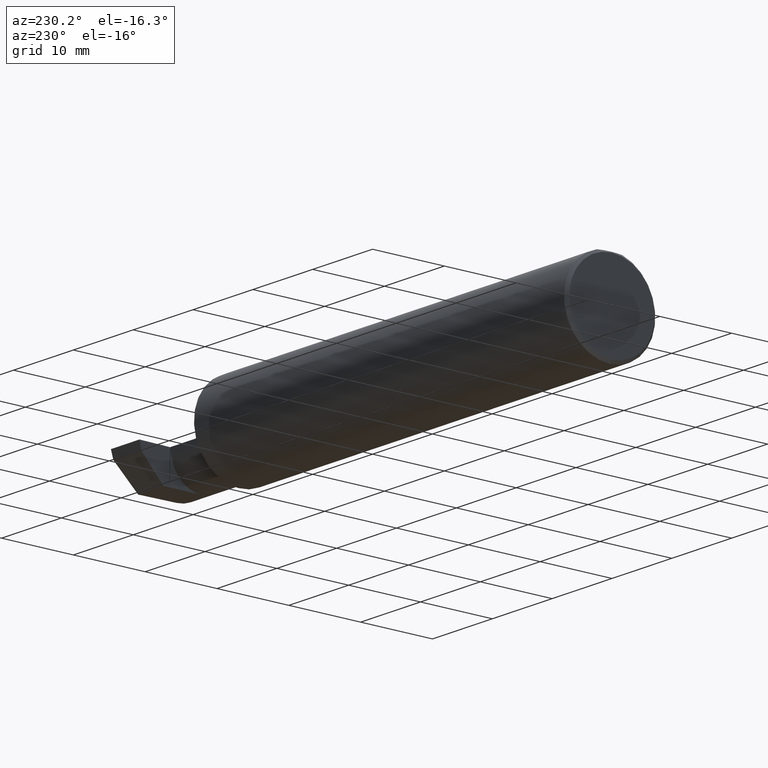
[diagram: clean part render]
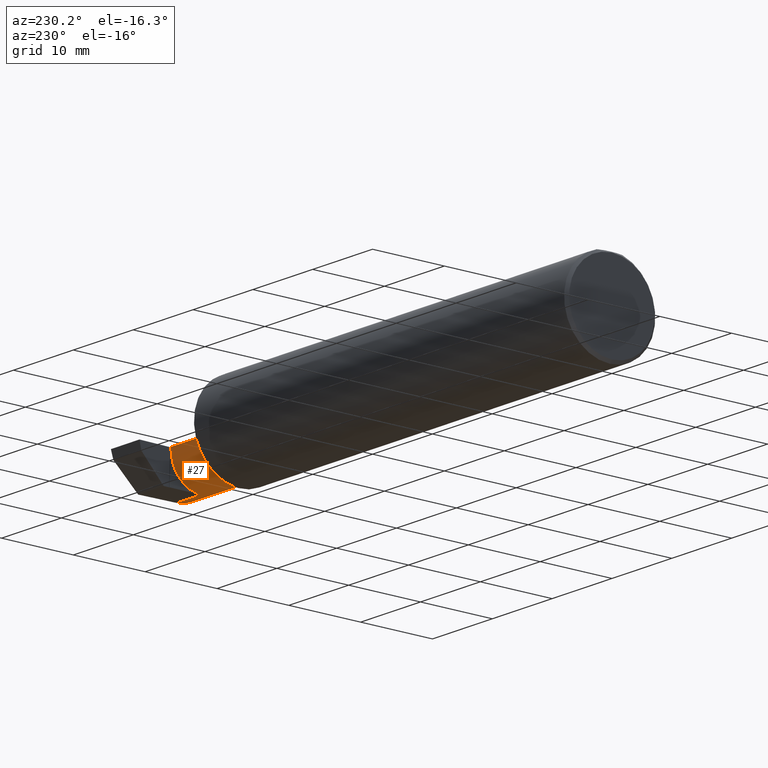
[diagram: same view with one face highlighted and labeled with its STEP entity id]
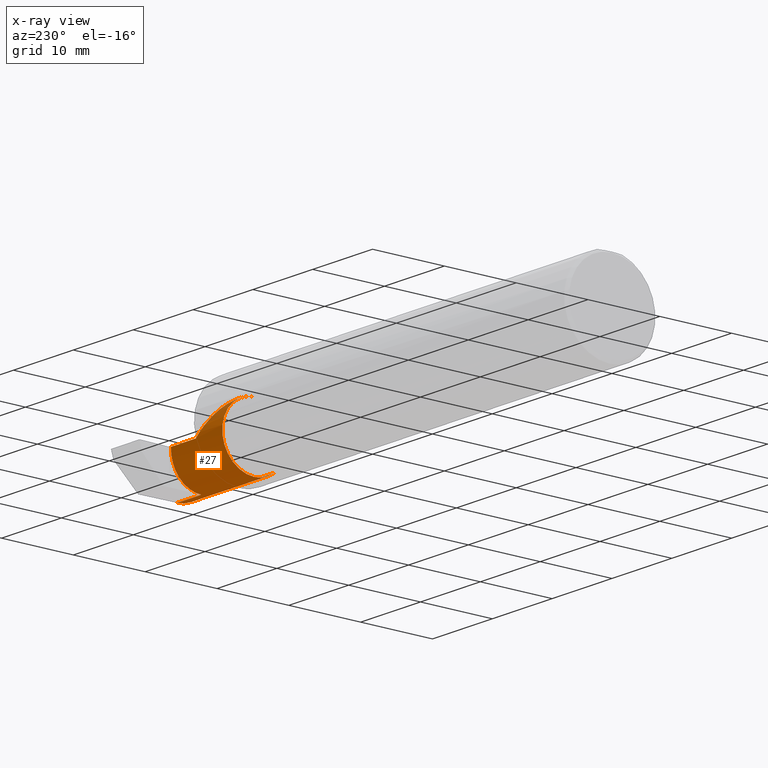
[diagram: x-ray of the same camera — body ghosted, the highlighted face saturated]
A machine part, auxiliary view. The second image highlights one B-rep face of the part: STEP entity #27.
The next image is the same camera in x-ray: the body ghosted, the highlighted face saturated — about 5% of this face is hidden behind the body in this view.
In plain terms, the highlighted cylindrical surface (partial cylindrical patch) has radius 4.445 mm, axis along (-1, -0, -0).
Its self-contained STEP definition (entity closure, byte-faithful):
#11 = EDGE_CURVE ( 'NONE', #62, #83, #819, .T. ) ;
#20 = FACE_OUTER_BOUND ( 'NONE', #667, .T. ) ;
#27 = ADVANCED_FACE ( 'NONE', ( #20 ), #511, .T. ) ;
#46 = EDGE_CURVE ( 'NONE', #113, #446, #530, .T. ) ;
#62 = VERTEX_POINT ( 'NONE', #579 ) ;
#82 = CARTESIAN_POINT ( 'NONE',  ( 2.814037492458068890, 0.06794054266098487060, -0.04620338416404773385 ) ) ;
#83 = VERTEX_POINT ( 'NONE', #518 ) ;
#91 = DIRECTION ( 'NONE',  ( 0.000000000000000000, 0.000000000000000000, 1.000000000000000000 ) ) ;
#99 = DIRECTION ( 'NONE',  ( -1.000000000000000000, -0.000000000000000000, -0.000000000000000000 ) ) ;
#103 = EDGE_CURVE ( 'NONE', #758, #438, #384, .T. ) ;
#113 = VERTEX_POINT ( 'NONE', #638 ) ;
#115 = AXIS2_PLACEMENT_3D ( 'NONE', #264, #715, #640 ) ;
#125 = EDGE_CURVE ( 'NONE', #205, #313, #450, .T. ) ;
#139 = EDGE_CURVE ( 'NONE', #83, #205, #283, .T. ) ;
#161 = EDGE_CURVE ( 'NONE', #733, #113, #604, .T. ) ;
#162 = CARTESIAN_POINT ( 'NONE',  ( 2.813372681961406219, 0.07204909126152568566, -0.03119400421533605194 ) ) ;
#167 = CARTESIAN_POINT ( 'NONE',  ( 2.814037492458068890, 0.06794054266098487060, -0.04620338416404773385 ) ) ;
#183 = AXIS2_PLACEMENT_3D ( 'NONE', #743, #749, #754 ) ;
#199 = CARTESIAN_POINT ( 'NONE',  ( 2.812000000000000277, -0.1008499999999999674, 0.000000000000000000 ) ) ;
#205 = VERTEX_POINT ( 'NONE', #783 ) ;
#230 = DIRECTION ( 'NONE',  ( -1.000000000000000000, -0.000000000000000000, -0.000000000000000000 ) ) ;
#264 = CARTESIAN_POINT ( 'NONE',  ( 2.450000000000000178, -0.1008499999999999674, 0.000000000000000000 ) ) ;
#265 = ORIENTED_EDGE ( 'NONE', *, *, #139, .T. ) ;
#283 = LINE ( 'NONE', #290, #555 ) ;
#290 = CARTESIAN_POINT ( 'NONE',  ( 2.450000000000000178, 0.07414999999999997982, 6.735557395310432655E-17 ) ) ;
#299 = ORIENTED_EDGE ( 'NONE', *, *, #412, .F. ) ;
#303 = CARTESIAN_POINT ( 'NONE',  ( 2.980479240051444378, -0.2080850024789291652, -0.1382955322609665250 ) ) ;
#304 = AXIS2_PLACEMENT_3D ( 'NONE', #466, #644, #718 ) ;
#313 = VERTEX_POINT ( 'NONE', #823 ) ;
#318 = AXIS2_PLACEMENT_3D ( 'NONE', #199, #99, #91 ) ;
#334 = EDGE_CURVE ( 'NONE', #62, #758, #789, .T. ) ;
#335 = CARTESIAN_POINT ( 'NONE',  ( 2.819564601548836702, 0.04629714416892590639, -0.1252712066320192108 ) ) ;
#368 = VERTEX_POINT ( 'NONE', #303 ) ;
#371 = VECTOR ( 'NONE', #230, 39.37007874015748143 ) ;
#384 = CIRCLE ( 'NONE', #304, 0.1749999999999999889 ) ;
#390 = CARTESIAN_POINT ( 'NONE',  ( 2.475000000000000089, -0.1008499999999999536, -0.1749999999999999889 ) ) ;
#404 = EDGE_CURVE ( 'NONE', #368, #438, #599, .T. ) ;
#412 = EDGE_CURVE ( 'NONE', #446, #313, #808, .T. ) ;
#415 = ORIENTED_EDGE ( 'NONE', *, *, #404, .T. ) ;
#420 = CARTESIAN_POINT ( 'NONE',  ( 2.983262242683407006, -0.1008499999999999674, -0.1749999999999999889 ) ) ;
#430 = ORIENTED_EDGE ( 'NONE', *, *, #334, .F. ) ;
#438 = VERTEX_POINT ( 'NONE', #735 ) ;
#446 = VERTEX_POINT ( 'NONE', #673 ) ;
#450 = CIRCLE ( 'NONE', #318, 0.1749999999999999889 ) ;
#456 = CARTESIAN_POINT ( 'NONE',  ( 2.823029432995153076, -0.1008500000000000091, -0.1749999999999999889 ) ) ;
#457 = ORIENTED_EDGE ( 'NONE', *, *, #11, .T. ) ;
#459 = CARTESIAN_POINT ( 'NONE',  ( 2.650000000000000355, 0.07414999999999997982, 4.286263797015727350E-17 ) ) ;
#465 = CARTESIAN_POINT ( 'NONE',  ( 2.983262242683407006, -0.1008499999999999674, -0.1749999999999999889 ) ) ;
#466 = CARTESIAN_POINT ( 'NONE',  ( 2.475000000000000089, -0.1008499999999999674, 0.000000000000000000 ) ) ;
#482 = CARTESIAN_POINT ( 'NONE',  ( 2.980931506555613453, -0.1771157075472509779, -0.1623092683844330475 ) ) ;
#483 = CARTESIAN_POINT ( 'NONE',  ( 2.812000000000000277, 0.07414987299205413884, -0.0002108382441793286695 ) ) ;
#511 = CYLINDRICAL_SURFACE ( 'NONE', #115, 0.1749999999999999889 ) ;
#516 = CARTESIAN_POINT ( 'NONE',  ( 2.475000000000001421, 0.001662626584708371512, 0.1749999999999999889 ) ) ;
#518 = CARTESIAN_POINT ( 'NONE',  ( 2.650000000000000355, 0.07414999999999997982, 4.286263797015727350E-17 ) ) ;
#521 = CARTESIAN_POINT ( 'NONE',  ( 2.547487373415292744, 0.07414999999999996594, 0.1025126265847083745 ) ) ;
#530 =( BOUNDED_CURVE ( )  B_SPLINE_CURVE ( 3, ( #456, #584, #335, #82 ),
 .UNSPECIFIED., .F., .F. ) 
 B_SPLINE_CURVE_WITH_KNOTS ( ( 4, 4 ),
 ( 3.140373936913444908, 4.443983221546780271 ),
 .UNSPECIFIED. ) 
 CURVE ( )  GEOMETRIC_REPRESENTATION_ITEM ( )  RATIONAL_B_SPLINE_CURVE ( ( 1.000000000000000000, 0.8633269052189366244, 0.8633269052189366244, 1.000000000000000000 ) ) 
 REPRESENTATION_ITEM ( '' )  );
#537 = ORIENTED_EDGE ( 'NONE', *, *, #817, .F. ) ;
#551 = CARTESIAN_POINT ( 'NONE',  ( 3.000000000000000444, -0.1008499999999999813, -0.1749999999999999889 ) ) ;
#555 = VECTOR ( 'NONE', #794, 39.37007874015748143 ) ;
#575 = ORIENTED_EDGE ( 'NONE', *, *, #161, .F. ) ;
#577 = ORIENTED_EDGE ( 'NONE', *, *, #46, .F. ) ;
#579 = CARTESIAN_POINT ( 'NONE',  ( 2.475000000000000977, -0.1008499999999999674, 0.1749999999999999889 ) ) ;
#584 = CARTESIAN_POINT ( 'NONE',  ( 2.823036419112082474, -0.01887343476265477757, -0.1749999999999999889 ) ) ;
#598 = CARTESIAN_POINT ( 'NONE',  ( 2.981893741990786495, -0.1400387324517231025, -0.1750000000000000167 ) ) ;
#599 = LINE ( 'NONE', #731, #686 ) ;
#604 = LINE ( 'NONE', #551, #371 ) ;
#612 = CARTESIAN_POINT ( 'NONE',  ( 2.812689495973014431, 0.07413112468342999972, -0.01577237022675135117 ) ) ;
#638 = CARTESIAN_POINT ( 'NONE',  ( 2.823029432995153076, -0.1008500000000000091, -0.1749999999999999889 ) ) ;
#640 = DIRECTION ( 'NONE',  ( 0.000000000000000000, 0.000000000000000000, 1.000000000000000000 ) ) ;
#644 = DIRECTION ( 'NONE',  ( -1.000000000000000000, -0.000000000000000000, -0.000000000000000000 ) ) ;
#650 = CARTESIAN_POINT ( 'NONE',  ( 2.475000000000000977, -0.1008499999999999674, 0.1749999999999999889 ) ) ;
#667 = EDGE_LOOP ( 'NONE', ( #537, #415, #761, #430, #457, #265, #814, #299, #577, #575 ) ) ;
#673 = CARTESIAN_POINT ( 'NONE',  ( 2.814037492458068890, 0.06794054266098487060, -0.04620338416404773385 ) ) ;
#686 = VECTOR ( 'NONE', #741, 39.37007874015748143 ) ;
#700 =( BOUNDED_CURVE ( )  B_SPLINE_CURVE ( 3, ( #800, #482, #598, #420 ),
 .UNSPECIFIED., .F., .F. ) 
 B_SPLINE_CURVE_WITH_KNOTS ( ( 4, 4 ),
 ( 0.2675252011803429530, 0.9270880441442505004 ),
 .UNSPECIFIED. ) 
 CURVE ( )  GEOMETRIC_REPRESENTATION_ITEM ( )  RATIONAL_B_SPLINE_CURVE ( ( 1.000000000000000000, 0.9640754331822828371, 0.9640754331822828371, 1.000000000000000000 ) ) 
 REPRESENTATION_ITEM ( '' )  );
#715 = DIRECTION ( 'NONE',  ( -1.000000000000000000, -0.000000000000000000, -0.000000000000000000 ) ) ;
#718 = DIRECTION ( 'NONE',  ( 0.000000000000000000, 0.000000000000000000, 1.000000000000000000 ) ) ;
#731 = CARTESIAN_POINT ( 'NONE',  ( 2.643500000000000405, -0.2080850024789291652, -0.1382955322609665250 ) ) ;
#733 = VERTEX_POINT ( 'NONE', #465 ) ;
#735 = CARTESIAN_POINT ( 'NONE',  ( 2.475000000000000089, -0.2080850024789291375, -0.1382955322609665805 ) ) ;
#741 = DIRECTION ( 'NONE',  ( -1.000000000000000000, -0.000000000000000000, -0.000000000000000000 ) ) ;
#743 = CARTESIAN_POINT ( 'NONE',  ( 2.475000000000000089, -0.1008499999999999674, 0.000000000000000000 ) ) ;
#749 = DIRECTION ( 'NONE',  ( -1.000000000000000000, -0.000000000000000000, -0.000000000000000000 ) ) ;
#754 = DIRECTION ( 'NONE',  ( 0.000000000000000000, 0.000000000000000000, 1.000000000000000000 ) ) ;
#758 = VERTEX_POINT ( 'NONE', #390 ) ;
#761 = ORIENTED_EDGE ( 'NONE', *, *, #103, .F. ) ;
#783 = CARTESIAN_POINT ( 'NONE',  ( 2.812000000000000277, 0.07414999999999999369, 6.735556484410550145E-17 ) ) ;
#789 = CIRCLE ( 'NONE', #183, 0.1749999999999999889 ) ;
#794 = DIRECTION ( 'NONE',  ( 1.000000000000000000, 0.000000000000000000, 0.000000000000000000 ) ) ;
#800 = CARTESIAN_POINT ( 'NONE',  ( 2.980479240051444378, -0.2080850024789291652, -0.1382955322609665250 ) ) ;
#808 =( BOUNDED_CURVE ( )  B_SPLINE_CURVE ( 3, ( #167, #162, #612, #483 ),
 .UNSPECIFIED., .F., .T. ) 
 B_SPLINE_CURVE_WITH_KNOTS ( ( 4, 4 ),
 ( 4.443983221546781159, 4.709965478757016655 ),
 .UNSPECIFIED. ) 
 CURVE ( )  GEOMETRIC_REPRESENTATION_ITEM ( )  RATIONAL_B_SPLINE_CURVE ( ( 1.000000000000000000, 0.9941131374841131185, 0.9941131374841131185, 1.000000000000000000 ) ) 
 REPRESENTATION_ITEM ( '' )  );
#814 = ORIENTED_EDGE ( 'NONE', *, *, #125, .T. ) ;
#817 = EDGE_CURVE ( 'NONE', #368, #733, #700, .T. ) ;
#819 =( BOUNDED_CURVE ( )  B_SPLINE_CURVE ( 3, ( #650, #516, #521, #459 ),
 .UNSPECIFIED., .F., .F. ) 
 B_SPLINE_CURVE_WITH_KNOTS ( ( 4, 4 ),
 ( 0.000000000000000000, 1.570796326794896558 ),
 .UNSPECIFIED. ) 
 CURVE ( )  GEOMETRIC_REPRESENTATION_ITEM ( )  RATIONAL_B_SPLINE_CURVE ( ( 1.000000000000000000, 0.8047378541243649375, 0.8047378541243649375, 1.000000000000000000 ) ) 
 REPRESENTATION_ITEM ( '' )  );
#823 = CARTESIAN_POINT ( 'NONE',  ( 2.812000000000000277, 0.07414987299205413884, -0.0002108382441793286695 ) ) ;